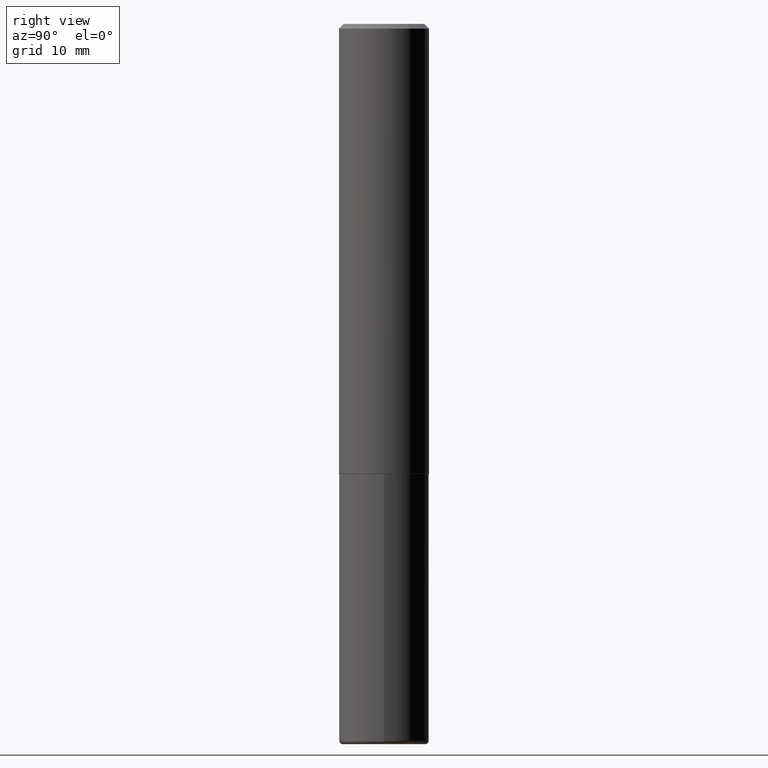
[diagram: clean part render]
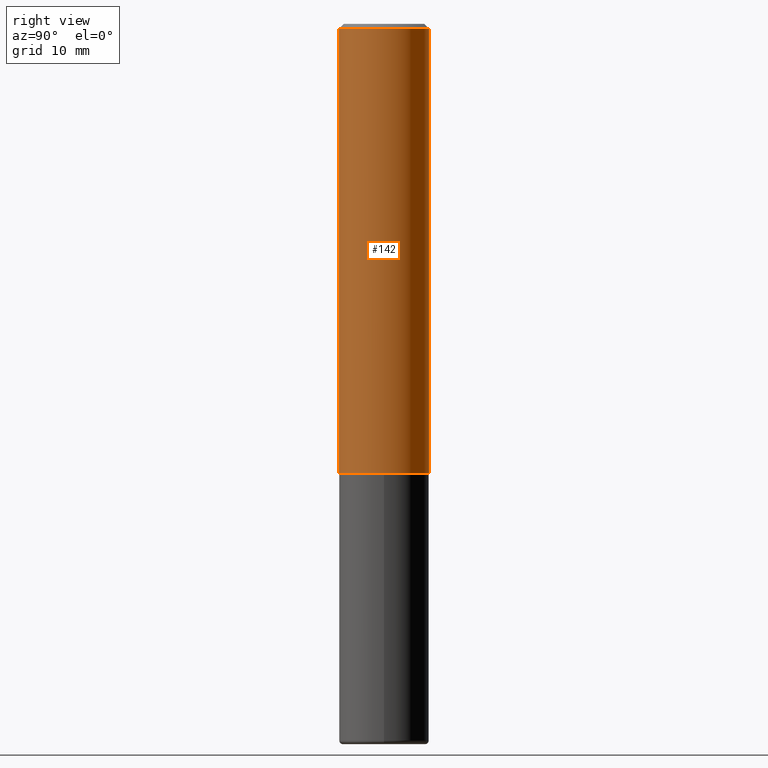
[diagram: same view with one face highlighted and labeled with its STEP entity id]
A machine part, right view. The second image highlights one B-rep face of the part: STEP entity #142.
In plain terms, the highlighted cylindrical surface (partial cylindrical patch) has radius 4.7625 mm, axis along (-0, 0, 1).
Its self-contained STEP definition (entity closure, byte-faithful):
#8 = ORIENTED_EDGE ( 'NONE', *, *, #11, .T. ) ;
#11 = EDGE_CURVE ( 'NONE', #27, #251, #150, .T. ) ;
#12 = VERTEX_POINT ( 'NONE', #61 ) ;
#21 = VECTOR ( 'NONE', #139, 39.37007874015748143 ) ;
#27 = VERTEX_POINT ( 'NONE', #192 ) ;
#31 = EDGE_LOOP ( 'NONE', ( #8, #280, #287, #406 ) ) ;
#34 = LINE ( 'NONE', #368, #88 ) ;
#61 = CARTESIAN_POINT ( 'NONE',  ( -1.286343374582161379E-15, -0.1875000000000000555, -0.01999999999999938979 ) ) ;
#80 = AXIS2_PLACEMENT_3D ( 'NONE', #87, #343, #324 ) ;
#87 = CARTESIAN_POINT ( 'NONE',  ( 4.582722359221045613E-29, -6.543159448769415354E-15, -1.874000000000000110 ) ) ;
#88 = VECTOR ( 'NONE', #228, 39.37007874015748143 ) ;
#93 = FACE_OUTER_BOUND ( 'NONE', #31, .T. ) ;
#99 = EDGE_CURVE ( 'NONE', #27, #12, #34, .T. ) ;
#111 = LINE ( 'NONE', #180, #21 ) ;
#136 = AXIS2_PLACEMENT_3D ( 'NONE', #349, #260, #191 ) ;
#139 = DIRECTION ( 'NONE',  ( -2.445422817087003844E-29, 3.491547197849208033E-15, 1.000000000000000000 ) ) ;
#142 = ADVANCED_FACE ( 'NONE', ( #93 ), #159, .T. ) ;
#150 = CIRCLE ( 'NONE', #80, 0.1875000000000001943 ) ;
#159 = CYLINDRICAL_SURFACE ( 'NONE', #136, 0.1875000000000000833 ) ;
#175 = AXIS2_PLACEMENT_3D ( 'NONE', #222, #267, #344 ) ;
#180 = CARTESIAN_POINT ( 'NONE',  ( 1.332267629550188243E-15, 0.1875000000000000833, -6.546650995967267527E-16 ) ) ;
#190 = CIRCLE ( 'NONE', #175, 0.1874999999999999722 ) ;
#191 = DIRECTION ( 'NONE',  ( -6.982962677686266711E-15, -1.000000000000000000, 3.491547197849207639E-15 ) ) ;
#192 = CARTESIAN_POINT ( 'NONE',  ( -1.309305502066130438E-15, -0.1875000000000067446, -1.873999999999999444 ) ) ;
#198 = EDGE_CURVE ( 'NONE', #12, #295, #190, .T. ) ;
#222 = CARTESIAN_POINT ( 'NONE',  ( 4.890845634174019353E-31, -6.983094395698430266E-17, -0.02000000000000004205 ) ) ;
#228 = DIRECTION ( 'NONE',  ( -2.445422817087003844E-29, 3.491547197849208033E-15, 1.000000000000000000 ) ) ;
#246 = CARTESIAN_POINT ( 'NONE',  ( 1.309305502066175205E-15, 0.1874999999999999167, -0.02000000000000069431 ) ) ;
#250 = EDGE_CURVE ( 'NONE', #251, #295, #111, .T. ) ;
#251 = VERTEX_POINT ( 'NONE', #270 ) ;
#260 = DIRECTION ( 'NONE',  ( -2.445422817087004124E-29, 3.491547197849208033E-15, 1.000000000000000000 ) ) ;
#267 = DIRECTION ( 'NONE',  ( -2.445422817087004124E-29, 3.491547197849208033E-15, 1.000000000000000000 ) ) ;
#270 = CARTESIAN_POINT ( 'NONE',  ( 1.332267629550211909E-15, 0.1874999999999936162, -1.874000000000000554 ) ) ;
#280 = ORIENTED_EDGE ( 'NONE', *, *, #250, .T. ) ;
#287 = ORIENTED_EDGE ( 'NONE', *, *, #198, .F. ) ;
#295 = VERTEX_POINT ( 'NONE', #246 ) ;
#324 = DIRECTION ( 'NONE',  ( -6.982962677686265922E-15, -1.000000000000000000, 2.913971193241877611E-15 ) ) ;
#343 = DIRECTION ( 'NONE',  ( -2.445422817087004124E-29, 3.491547197849208033E-15, 1.000000000000000000 ) ) ;
#344 = DIRECTION ( 'NONE',  ( -6.982962677686266711E-15, -1.000000000000000000, 3.483106191921935949E-15 ) ) ;
#349 = CARTESIAN_POINT ( 'NONE',  ( 0.000000000000000000, 0.000000000000000000, 0.000000000000000000 ) ) ;
#368 = CARTESIAN_POINT ( 'NONE',  ( -1.309305502066175600E-15, -0.1875000000000000833, 6.546650995967267527E-16 ) ) ;
#406 = ORIENTED_EDGE ( 'NONE', *, *, #99, .F. ) ;